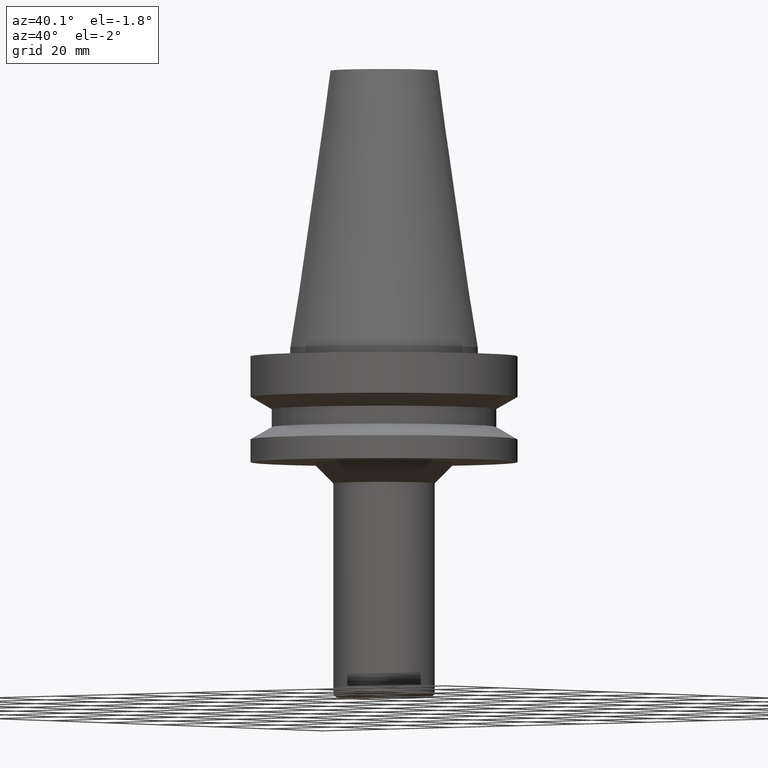
[diagram: clean part render]
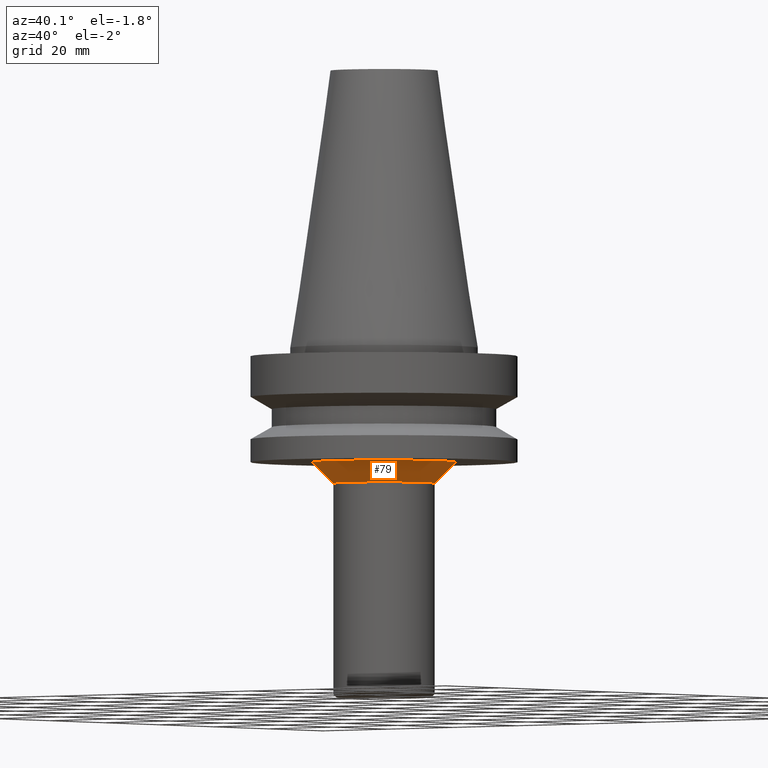
[diagram: same view with one face highlighted and labeled with its STEP entity id]
A machine part, auxiliary view. The second image highlights one B-rep face of the part: STEP entity #79.
In plain terms, the highlighted conical surface has half-angle 45 deg.
Its self-contained STEP definition (entity closure, byte-faithful):
#79=ADVANCED_FACE('',(#101,#102),#103,.T.);
#101=FACE_BOUND('',#141,.T.);
#102=FACE_BOUND('',#142,.T.);
#103=CONICAL_SURFACE('',#143,14.5,0.785398163397449);
#141=EDGE_LOOP('',(#189));
#142=EDGE_LOOP('',(#190));
#143=AXIS2_PLACEMENT_3D('',#191,#192,#193);
#189=ORIENTED_EDGE('',*,*,#243,.F.);
#190=ORIENTED_EDGE('',*,*,#242,.T.);
#191=CARTESIAN_POINT('',(1.80635402874235E-015,3.61270805748469E-015,-29.5));
#192=DIRECTION('',(-6.12323399573677E-017,-1.22464679914735E-016,1.0));
#193=DIRECTION('',(-1.23259516440783E-032,1.0,1.22464679914735E-016));
#242=EDGE_CURVE('',#259,#259,#260,.T.);
#243=EDGE_CURVE('',#261,#261,#262,.T.);
#259=VERTEX_POINT('',#285);
#260=CIRCLE('',#286,12.0);
#261=VERTEX_POINT('',#287);
#262=CIRCLE('',#288,17.0);
#285=CARTESIAN_POINT('',(1.95943487863577E-015,12.0,-32.0));
#286=AXIS2_PLACEMENT_3D('',#315,#316,#317);
#287=CARTESIAN_POINT('',(1.65327317884893E-015,17.0,-27.0));
#288=AXIS2_PLACEMENT_3D('',#318,#319,#320);
#315=CARTESIAN_POINT('',(1.95943487863577E-015,3.91886975727153E-015,-32.0));
#316=DIRECTION('',(-6.12323399573676E-017,-1.22464679914735E-016,1.0));
#317=DIRECTION('',(-1.23259516440783E-032,1.0,1.22464679914735E-016));
#318=CARTESIAN_POINT('',(1.65327317884893E-015,3.30654635769785E-015,-27.0));
#319=DIRECTION('',(-6.12323399573677E-017,-1.22464679914735E-016,1.0));
#320=DIRECTION('',(-1.23259516440783E-032,1.0,1.22464679914735E-016));